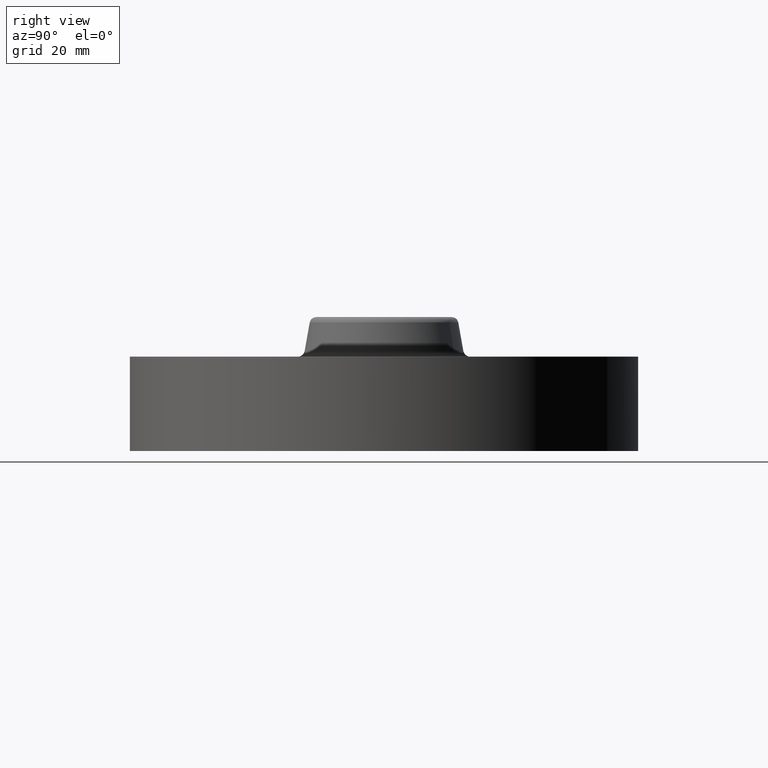
[diagram: clean part render]
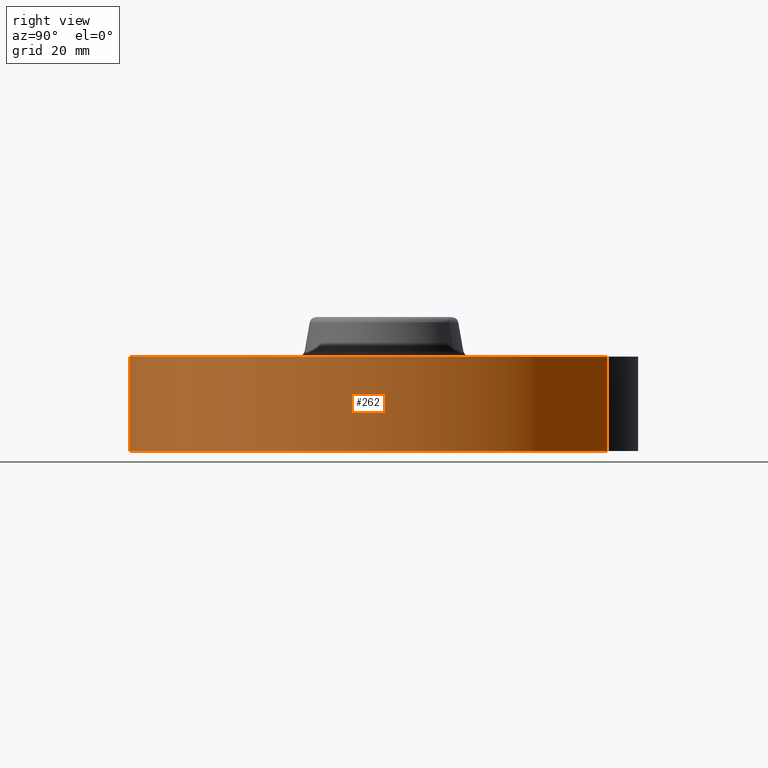
[diagram: same view with one face highlighted and labeled with its STEP entity id]
A machine part, right view. The second image highlights one B-rep face of the part: STEP entity #262.
In plain terms, the highlighted cylindrical surface (partial cylindrical patch) has radius 60.325 mm, axis along (0, 0, -1).
Its self-contained STEP definition (entity closure, byte-faithful):
#136=AXIS2_PLACEMENT_3D('Circle Axis2P3D',#134,#135,$) ;
#223=AXIS2_PLACEMENT_3D('Cylinder Axis2P3D',#220,#221,#222) ;
#253=AXIS2_PLACEMENT_3D('Circle Axis2P3D',#251,#252,$) ;
#129=CARTESIAN_POINT('Vertex',(-1.13863565419,-2.0842585845,1.39870617276E-016)) ;
#131=CARTESIAN_POINT('Vertex',(1.13863565419,2.0842585845,1.39870617276E-016)) ;
#134=CARTESIAN_POINT('Axis2P3D Location',(0.,0.,0.)) ;
#220=CARTESIAN_POINT('Axis2P3D Location',(0.,0.,0.625000000002)) ;
#225=CARTESIAN_POINT('Line Origine',(-1.13863565419,-2.0842585845,0.440000000002)) ;
#229=CARTESIAN_POINT('Vertex',(-1.13863565419,-2.0842585845,0.880000000004)) ;
#236=CARTESIAN_POINT('Vertex',(1.13863565419,2.0842585845,0.880000000004)) ;
#239=CARTESIAN_POINT('Line Origine',(1.13863565419,2.0842585845,0.440000000002)) ;
#251=CARTESIAN_POINT('Axis2P3D Location',(0.,0.,0.880000000004)) ;
#135=DIRECTION('Axis2P3D Direction',(0.,0.,-0.0393700787402)) ;
#221=DIRECTION('Axis2P3D Direction',(0.,0.,-0.0393700787402)) ;
#222=DIRECTION('Axis2P3D XDirection',(0.0188750212049,0.0345504945626,0.)) ;
#226=DIRECTION('Vector Direction',(0.,0.,-0.0393700787402)) ;
#240=DIRECTION('Vector Direction',(0.,0.,-0.0393700787402)) ;
#252=DIRECTION('Axis2P3D Direction',(0.,0.,-0.0393700787402)) ;
#227=VECTOR('Line Direction',#226,0.0393700787402) ;
#241=VECTOR('Line Direction',#240,0.0393700787402) ;
#257=ORIENTED_EDGE('',*,*,#138,.F.) ;
#258=ORIENTED_EDGE('',*,*,#243,.T.) ;
#259=ORIENTED_EDGE('',*,*,#255,.T.) ;
#260=ORIENTED_EDGE('',*,*,#231,.F.) ;
#262=ADVANCED_FACE('PartBody',(#261),#224,.T.) ;
#137=CIRCLE('generated circle',#136,2.37500000001) ;
#254=CIRCLE('generated circle',#253,2.37500000001) ;
#224=CYLINDRICAL_SURFACE('generated cylinder',#223,2.37500000001) ;
#138=EDGE_CURVE('',#132,#130,#137,.T.) ;
#231=EDGE_CURVE('',#130,#230,#228,.F.) ;
#243=EDGE_CURVE('',#132,#237,#242,.F.) ;
#255=EDGE_CURVE('',#237,#230,#254,.T.) ;
#256=EDGE_LOOP('',(#257,#258,#259,#260)) ;
#261=FACE_OUTER_BOUND('',#256,.T.) ;
#228=LINE('Line',#225,#227) ;
#242=LINE('Line',#239,#241) ;
#130=VERTEX_POINT('',#129) ;
#132=VERTEX_POINT('',#131) ;
#230=VERTEX_POINT('',#229) ;
#237=VERTEX_POINT('',#236) ;